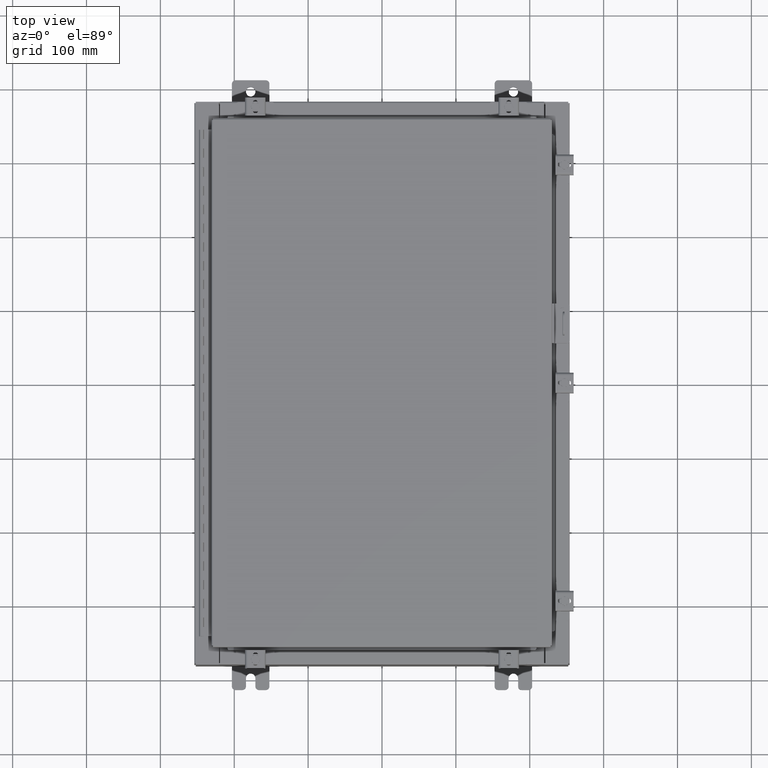
[diagram: clean part render]
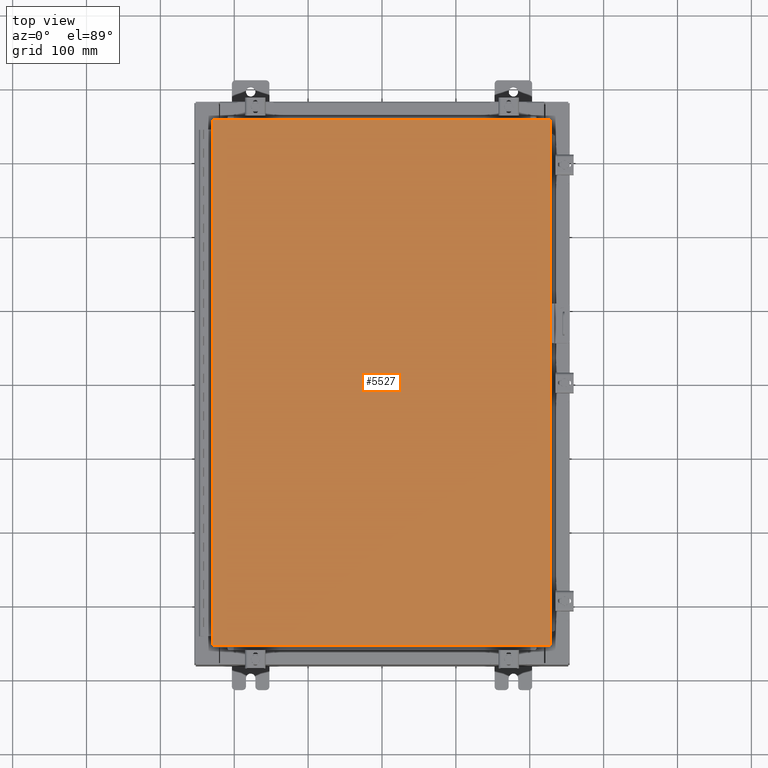
[diagram: same view with one face highlighted and labeled with its STEP entity id]
A machine part, top view. The second image highlights one B-rep face of the part: STEP entity #5527.
In plain terms, the highlighted planar face has unit normal (0, 0, -1).
Its self-contained STEP definition (entity closure, byte-faithful):
#824 = DIRECTION ( 'NONE',  ( 0.0000000000000000000, 0.0000000000000000000, -1.000000000000000000 ) ) ;
#927 = EDGE_LOOP ( 'NONE', ( #31077, #9716, #8141, #24085 ) ) ;
#1306 = LINE ( 'NONE', #2857, #23783 ) ;
#2627 = DIRECTION ( 'NONE',  ( 1.000000000000000000, -0.0000000000000000000, -0.0000000000000000000 ) ) ;
#2857 = CARTESIAN_POINT ( 'NONE',  ( 8.990300000000001300, 14.00629999999999800, 0.0000000000000000000 ) ) ;
#3424 = VERTEX_POINT ( 'NONE', #25059 ) ;
#4320 = EDGE_CURVE ( 'NONE', #32202, #3424, #30286, .T. ) ;
#5527 = ADVANCED_FACE ( 'NONE', ( #29730 ), #35937, .F. ) ;
#7650 = VECTOR ( 'NONE', #10054, 39.37007874015748100 ) ;
#8141 = ORIENTED_EDGE ( 'NONE', *, *, #28737, .T. ) ;
#8564 = LINE ( 'NONE', #30525, #7650 ) ;
#9569 = CARTESIAN_POINT ( 'NONE',  ( 0.0000000000000000000, 0.0000000000000000000, 0.0000000000000000000 ) ) ;
#9716 = ORIENTED_EDGE ( 'NONE', *, *, #24748, .T. ) ;
#10054 = DIRECTION ( 'NONE',  ( 0.0000000000000000000, -1.000000000000000000, 0.0000000000000000000 ) ) ;
#11715 = DIRECTION ( 'NONE',  ( -1.000000000000000000, -0.0000000000000000000, -0.0000000000000000000 ) ) ;
#14423 = EDGE_CURVE ( 'NONE', #36253, #32202, #8564, .T. ) ;
#15384 = VERTEX_POINT ( 'NONE', #34647 ) ;
#15853 = CARTESIAN_POINT ( 'NONE',  ( 8.990300000000001300, -14.00629999999999800, -1.092739197465705300E-015 ) ) ;
#19017 = CARTESIAN_POINT ( 'NONE',  ( -8.990299999999997700, 14.00630000000000100, 0.0000000000000000000 ) ) ;
#20110 = VECTOR ( 'NONE', #21725, 39.37007874015748100 ) ;
#21024 = LINE ( 'NONE', #15853, #20110 ) ;
#21334 = DIRECTION ( 'NONE',  ( -1.000000000000000000, 0.0000000000000000000, -0.0000000000000000000 ) ) ;
#21725 = DIRECTION ( 'NONE',  ( 0.0000000000000000000, 1.000000000000000000, 0.0000000000000000000 ) ) ;
#22512 = VECTOR ( 'NONE', #2627, 39.37007874015748100 ) ;
#23137 = CARTESIAN_POINT ( 'NONE',  ( -8.990299999999996000, -14.00629999999999800, 2.185478394931410600E-015 ) ) ;
#23783 = VECTOR ( 'NONE', #11715, 39.37007874015748100 ) ;
#24085 = ORIENTED_EDGE ( 'NONE', *, *, #14423, .T. ) ;
#24748 = EDGE_CURVE ( 'NONE', #3424, #15384, #21024, .T. ) ;
#25059 = CARTESIAN_POINT ( 'NONE',  ( 8.990300000000001300, -14.00629999999999800, -1.092739197465705300E-015 ) ) ;
#28737 = EDGE_CURVE ( 'NONE', #15384, #36253, #1306, .T. ) ;
#29730 = FACE_OUTER_BOUND ( 'NONE', #927, .T. ) ;
#30286 = LINE ( 'NONE', #23137, #22512 ) ;
#30525 = CARTESIAN_POINT ( 'NONE',  ( -8.990299999999997700, 14.00630000000000100, 0.0000000000000000000 ) ) ;
#31077 = ORIENTED_EDGE ( 'NONE', *, *, #4320, .T. ) ;
#32202 = VERTEX_POINT ( 'NONE', #34740 ) ;
#34647 = CARTESIAN_POINT ( 'NONE',  ( 8.990300000000001300, 14.00629999999999800, 0.0000000000000000000 ) ) ;
#34740 = CARTESIAN_POINT ( 'NONE',  ( -8.990299999999997700, -14.00629999999999800, 2.185478394931410600E-015 ) ) ;
#35937 = PLANE ( 'NONE',  #37808 ) ;
#36253 = VERTEX_POINT ( 'NONE', #19017 ) ;
#37808 = AXIS2_PLACEMENT_3D ( 'NONE', #9569, #824, #21334 ) ;